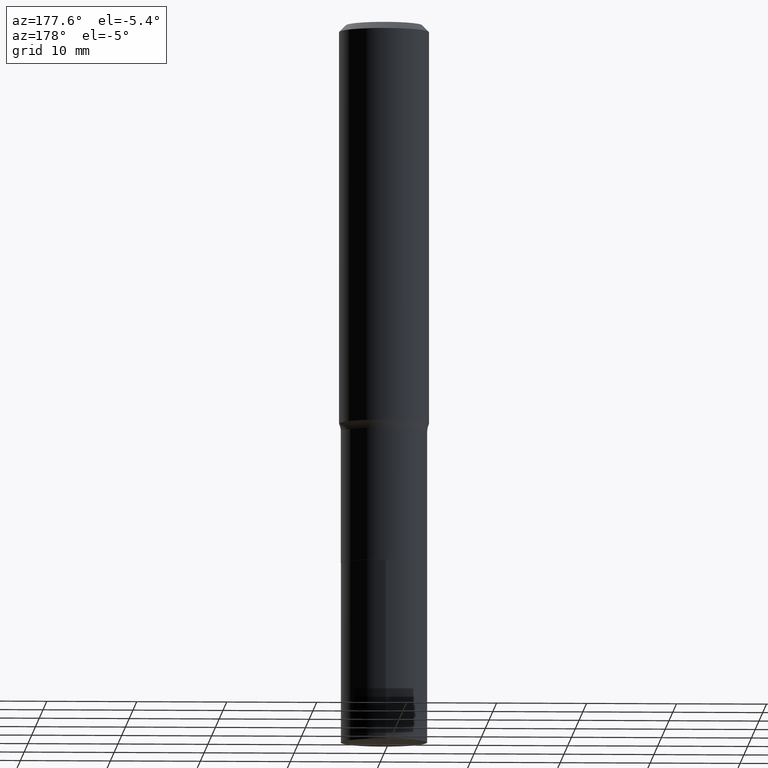
[diagram: clean part render]
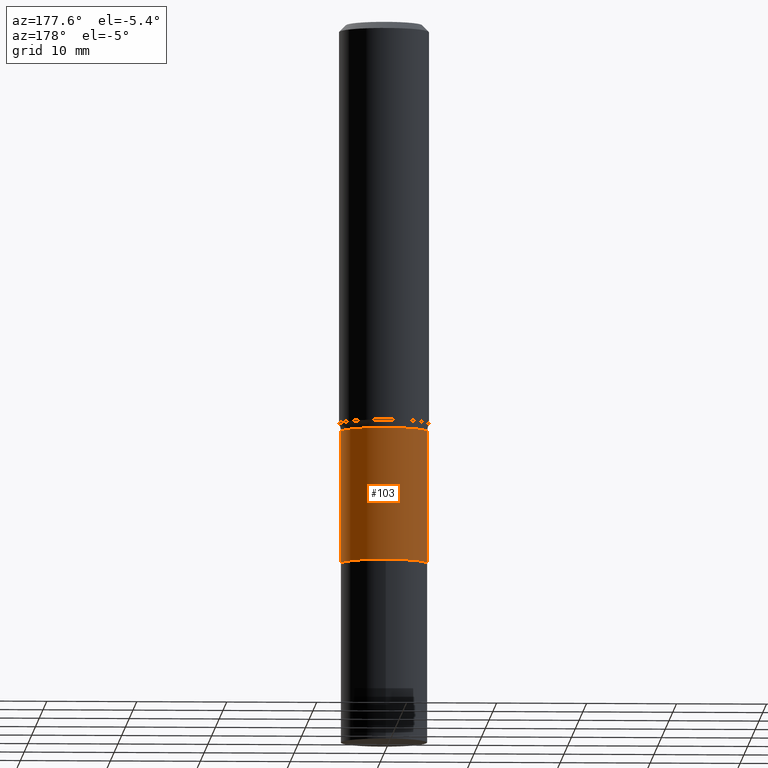
[diagram: same view with one face highlighted and labeled with its STEP entity id]
A machine part, auxiliary view. The second image highlights one B-rep face of the part: STEP entity #103.
In plain terms, the highlighted cylindrical surface (partial cylindrical patch) has radius 4.8006 mm, axis along (-0, 0, 1).
Its self-contained STEP definition (entity closure, byte-faithful):
#4 = CARTESIAN_POINT ( 'NONE',  ( -0.1889999999999999458, 1.342925770586588966E-15, -9.296787320581769859E-30 ) ) ;
#9 = DIRECTION ( 'NONE',  ( 1.000000000000000000, -6.982962677686269077E-15, 0.000000000000000000 ) ) ;
#14 = AXIS2_PLACEMENT_3D ( 'NONE', #42, #322, #431 ) ;
#20 = CIRCLE ( 'NONE', #14, 0.1889999999999999736 ) ;
#24 = EDGE_LOOP ( 'NONE', ( #428, #166, #412, #216 ) ) ;
#36 = CYLINDRICAL_SURFACE ( 'NONE', #272, 0.1889999999999999458 ) ;
#42 = CARTESIAN_POINT ( 'NONE',  ( 5.776441867089912090E-29, -8.247228070481394537E-15, -2.362100000000000311 ) ) ;
#49 = EDGE_CURVE ( 'NONE', #373, #229, #151, .T. ) ;
#84 = DIRECTION ( 'NONE',  ( -2.445468806185136877E-29, 3.491481338843145188E-15, 1.000000000000000000 ) ) ;
#103 = ADVANCED_FACE ( 'NONE', ( #247 ), #36, .T. ) ;
#124 = EDGE_CURVE ( 'NONE', #310, #354, #20, .T. ) ;
#126 = EDGE_CURVE ( 'NONE', #354, #229, #294, .T. ) ;
#141 = AXIS2_PLACEMENT_3D ( 'NONE', #149, #152, #9 ) ;
#149 = CARTESIAN_POINT ( 'NONE',  ( 4.362471803353666187E-29, -6.228453560362288135E-15, -1.783900000000000263 ) ) ;
#151 = CIRCLE ( 'NONE', #141, 0.1889999999999999181 ) ;
#152 = DIRECTION ( 'NONE',  ( -2.445468806185136597E-29, 3.491481338843145583E-15, 1.000000000000000000 ) ) ;
#166 = ORIENTED_EDGE ( 'NONE', *, *, #126, .T. ) ;
#167 = VECTOR ( 'NONE', #395, 39.37007874015748143 ) ;
#191 = CARTESIAN_POINT ( 'NONE',  ( -0.1889999999999999736, -5.894915044835252764E-15, -2.362100000000000311 ) ) ;
#202 = CARTESIAN_POINT ( 'NONE',  ( 0.1889999999999999181, -7.548233506444992953E-15, -1.783900000000000263 ) ) ;
#216 = ORIENTED_EDGE ( 'NONE', *, *, #434, .F. ) ;
#229 = VERTEX_POINT ( 'NONE', #234 ) ;
#234 = CARTESIAN_POINT ( 'NONE',  ( -0.1889999999999999181, -5.894915044835252764E-15, -1.783900000000000263 ) ) ;
#247 = FACE_OUTER_BOUND ( 'NONE', #24, .T. ) ;
#258 = DIRECTION ( 'NONE',  ( -2.445468806185136597E-29, 3.491481338843145583E-15, 1.000000000000000000 ) ) ;
#269 = CARTESIAN_POINT ( 'NONE',  ( 0.1889999999999999458, -1.319779946082704030E-15, 9.215974106254316519E-30 ) ) ;
#272 = AXIS2_PLACEMENT_3D ( 'NONE', #362, #258, #323 ) ;
#294 = LINE ( 'NONE', #4, #167 ) ;
#296 = VECTOR ( 'NONE', #84, 39.37007874015748143 ) ;
#310 = VERTEX_POINT ( 'NONE', #391 ) ;
#322 = DIRECTION ( 'NONE',  ( -2.445468806185136597E-29, 3.491481338843145583E-15, 1.000000000000000000 ) ) ;
#323 = DIRECTION ( 'NONE',  ( 1.000000000000000000, -6.982962677686266711E-15, 4.876176775795935793E-29 ) ) ;
#339 = LINE ( 'NONE', #269, #296 ) ;
#354 = VERTEX_POINT ( 'NONE', #191 ) ;
#362 = CARTESIAN_POINT ( 'NONE',  ( 0.000000000000000000, 0.000000000000000000, 0.000000000000000000 ) ) ;
#373 = VERTEX_POINT ( 'NONE', #202 ) ;
#391 = CARTESIAN_POINT ( 'NONE',  ( 0.1889999999999999736, -9.567008016564100144E-15, -2.362100000000000311 ) ) ;
#395 = DIRECTION ( 'NONE',  ( -2.445468806185136877E-29, 3.491481338843145188E-15, 1.000000000000000000 ) ) ;
#412 = ORIENTED_EDGE ( 'NONE', *, *, #49, .F. ) ;
#428 = ORIENTED_EDGE ( 'NONE', *, *, #124, .T. ) ;
#431 = DIRECTION ( 'NONE',  ( 1.000000000000000000, -6.982962677686266711E-15, 0.000000000000000000 ) ) ;
#434 = EDGE_CURVE ( 'NONE', #310, #373, #339, .T. ) ;